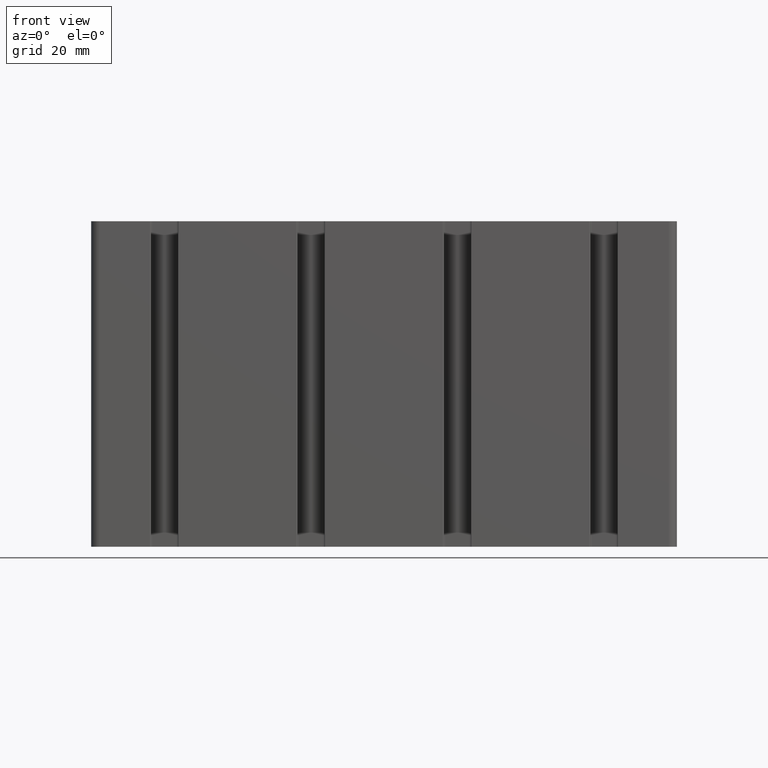
[diagram: clean part render]
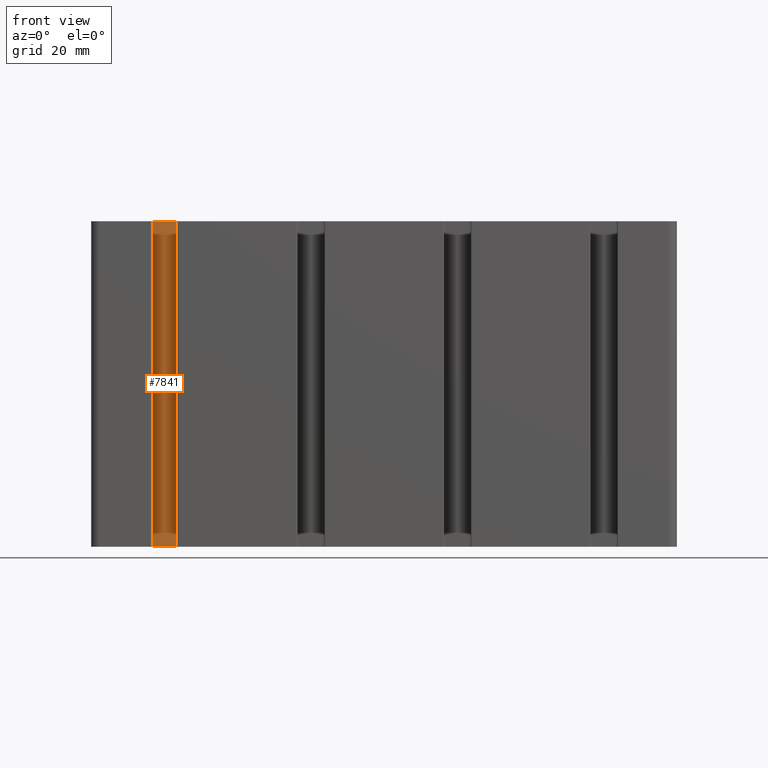
[diagram: same view with one face highlighted and labeled with its STEP entity id]
A machine part, front view. The second image highlights one B-rep face of the part: STEP entity #7841.
In plain terms, the highlighted planar face has unit normal (0, 1, 0).
Its self-contained STEP definition (entity closure, byte-faithful):
#767=FACE_OUTER_BOUND('',#1175,.T.);
#1175=EDGE_LOOP('',(#5461,#5462,#5463,#5464));
#1677=LINE('',#11962,#2465);
#1679=LINE('',#11968,#2467);
#1680=LINE('',#11970,#2468);
#1681=LINE('',#11971,#2469);
#2465=VECTOR('',#9513,100.);
#2467=VECTOR('',#9519,7.4);
#2468=VECTOR('',#9520,100.);
#2469=VECTOR('',#9521,7.4);
#3269=VERTEX_POINT('',#11958);
#3271=VERTEX_POINT('',#11961);
#3273=VERTEX_POINT('',#11967);
#3274=VERTEX_POINT('',#11969);
#4162=EDGE_CURVE('',#3271,#3269,#1677,.T.);
#4165=EDGE_CURVE('',#3273,#3269,#1679,.T.);
#4166=EDGE_CURVE('',#3274,#3273,#1680,.T.);
#4167=EDGE_CURVE('',#3271,#3274,#1681,.T.);
#5461=ORIENTED_EDGE('',*,*,#4165,.F.);
#5462=ORIENTED_EDGE('',*,*,#4166,.F.);
#5463=ORIENTED_EDGE('',*,*,#4167,.F.);
#5464=ORIENTED_EDGE('',*,*,#4162,.T.);
#7598=PLANE('',#8349);
#7841=ADVANCED_FACE('',(#767),#7598,.F.);
#8349=AXIS2_PLACEMENT_3D('',#11966,#9517,#9518);
#9513=DIRECTION('',(0.,0.,1.));
#9517=DIRECTION('center_axis',(1.20024110770287E-15,1.,0.));
#9518=DIRECTION('ref_axis',(0.,0.,1.));
#9519=DIRECTION('',(1.,-1.20024110770287E-15,0.));
#9520=DIRECTION('',(0.,0.,1.));
#9521=DIRECTION('',(-1.,1.20024110770287E-15,0.));
#11958=CARTESIAN_POINT('',(-63.8,-29.7,100.));
#11961=CARTESIAN_POINT('',(-63.8,-29.7,0.));
#11962=CARTESIAN_POINT('',(-63.8,-29.7,0.));
#11966=CARTESIAN_POINT('Origin',(-71.2,-29.7,0.));
#11967=CARTESIAN_POINT('',(-71.2,-29.7,100.));
#11968=CARTESIAN_POINT('',(-35.6,-29.7,100.));
#11969=CARTESIAN_POINT('',(-71.2,-29.7,0.));
#11970=CARTESIAN_POINT('',(-71.2,-29.7,0.));
#11971=CARTESIAN_POINT('',(-35.6,-29.7,0.));